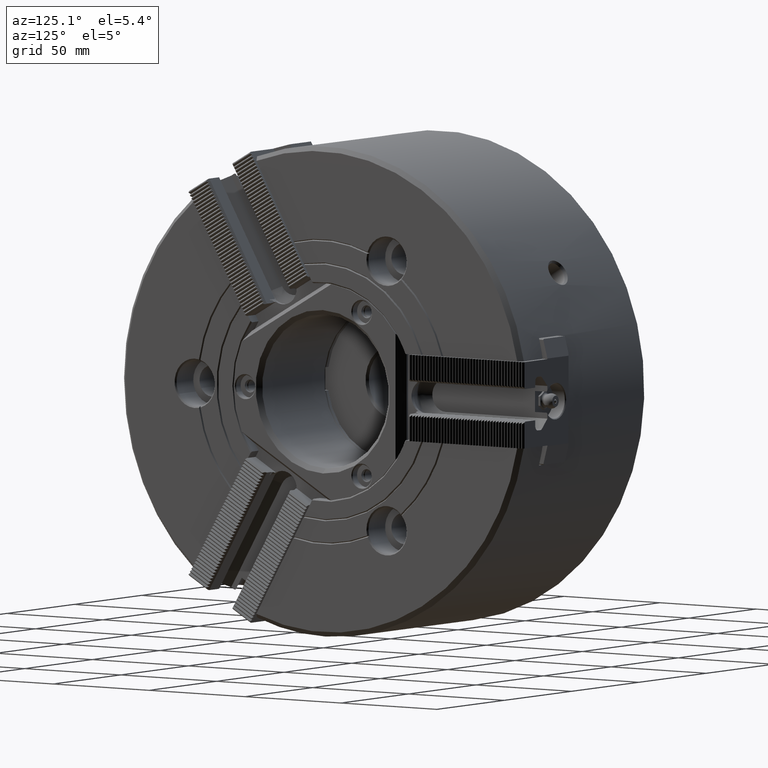
[diagram: clean part render]
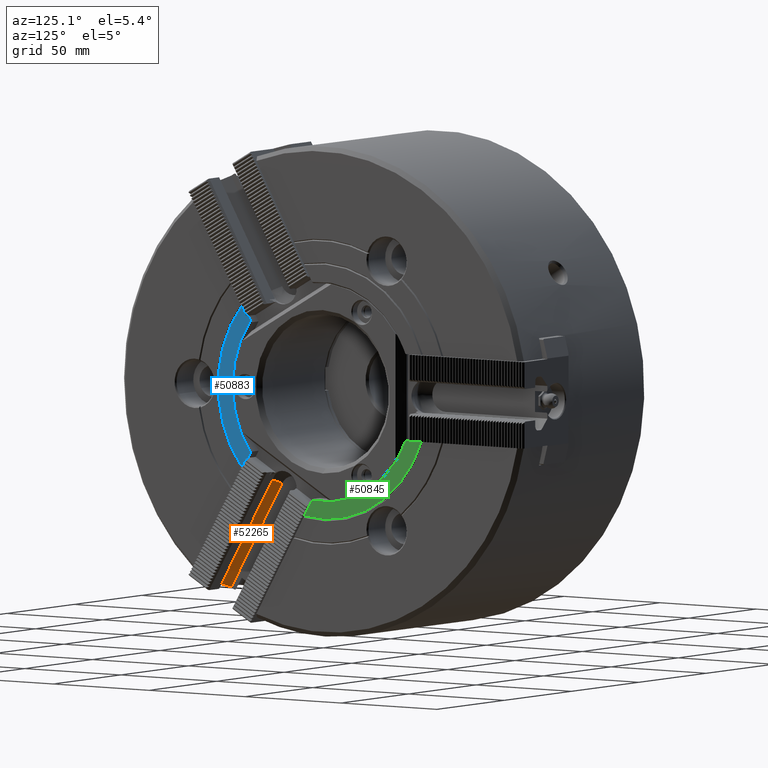
[diagram: same view with three faces highlighted in distinct colors, each labeled with its STEP entity id]
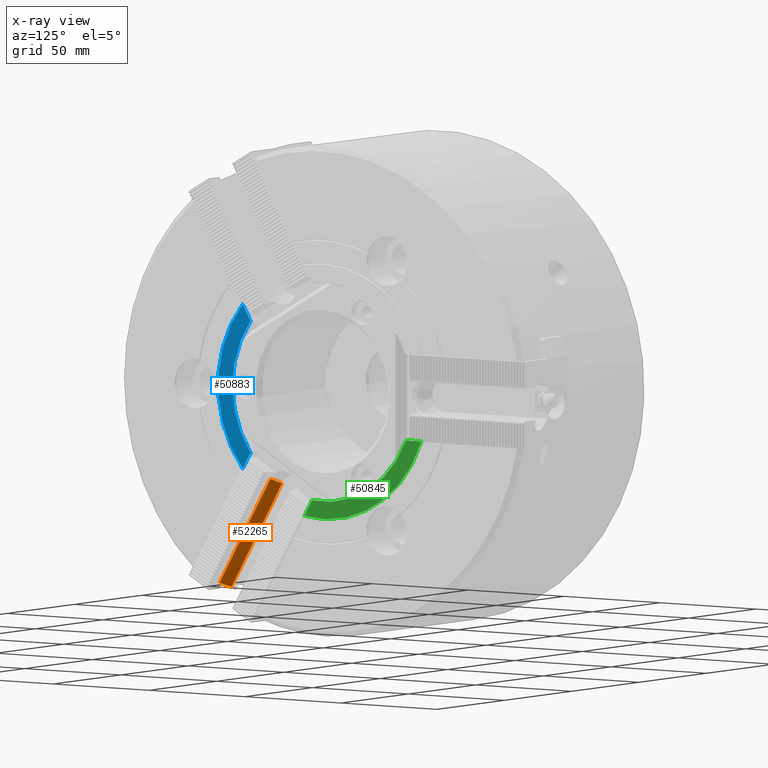
[diagram: x-ray of the same camera — body ghosted, the three highlighted faces saturated]
A machine part, auxiliary view with three faces highlighted in distinct colors.
The next image is the same camera in x-ray (body ghosted, the three faces saturated) — at least one of them is partly hidden behind the body in this view.
Their STEP definitions:

[orange] entity #52265 — the highlighted planar face has unit normal (-0.7071, -0.6124, 0.3536).
#1907=PLANE('',#55027);
#6609=LINE('',#77130,#10636);
#6619=LINE('',#77155,#10646);
#6622=LINE('',#77174,#10649);
#6623=LINE('',#77176,#10650);
#10636=VECTOR('',#63751,1000.);
#10646=VECTOR('',#63779,1000.);
#10649=VECTOR('',#63792,1000.);
#10650=VECTOR('',#63793,1000.);
#19846=ORIENTED_EDGE('',*,*,#27061,.T.);
#19847=ORIENTED_EDGE('',*,*,#27062,.F.);
#19848=ORIENTED_EDGE('',*,*,#27041,.F.);
#19849=ORIENTED_EDGE('',*,*,#27055,.T.);
#27041=EDGE_CURVE('',#30791,#31222,#6609,.T.);
#27055=EDGE_CURVE('',#30791,#31227,#6619,.T.);
#27061=EDGE_CURVE('',#31227,#31231,#6622,.T.);
#27062=EDGE_CURVE('',#31222,#31231,#6623,.T.);
#30791=VERTEX_POINT('',#75357);
#31222=VERTEX_POINT('',#77131);
#31227=VERTEX_POINT('',#77154);
#31231=VERTEX_POINT('',#77175);
#33637=EDGE_LOOP('',(#19846,#19847,#19848,#19849));
#35940=FACE_BOUND('',#33637,.T.);
#52265=ADVANCED_FACE('',(#35940),#1907,.F.);
#55027=AXIS2_PLACEMENT_3D('',#77173,#63790,#63791);
#63751=DIRECTION('',(-0.70710678118655,0.612372435695792,-0.353553390593273));
#63779=DIRECTION('',(-4.99014954236659E-16,-0.500000000000001,-0.866025403784438));
#63790=DIRECTION('',(-0.707106781186546,-0.612372435695796,0.353553390593276));
#63791=DIRECTION('',(-0.70710678118655,0.612372435695792,-0.353553390593273));
#63792=DIRECTION('',(-0.70710678118655,0.612372435695792,-0.353553390593273));
#63793=DIRECTION('',(-4.99014954236659E-16,-0.500000000000001,-0.866025403784438));
#75357=CARTESIAN_POINT('',(-12.0857864376269,-35.8585676859036,-40.2804339658889));
#77130=CARTESIAN_POINT('',(-16.0000000000001,-32.4687593050509,-42.2375407470755));
#77131=CARTESIAN_POINT('',(-16.0000000000001,-32.4687593050509,-42.2375407470755));
#77154=CARTESIAN_POINT('',(-12.0857864376269,-62.3585676859036,-86.1797803664641));
#77155=CARTESIAN_POINT('',(-12.0857864376269,-35.8585676859036,-40.2804339658889));
#77173=CARTESIAN_POINT('',(-16.0000000000001,-32.4687593050509,-42.2375407470755));
#77174=CARTESIAN_POINT('',(-16.0000000000001,-58.968759305051,-88.1368871476507));
#77175=CARTESIAN_POINT('',(-16.0000000000001,-58.968759305051,-88.1368871476507));
#77176=CARTESIAN_POINT('',(-16.0000000000001,-32.4687593050509,-42.2375407470755));

[blue] entity #50883 — the highlighted planar face has unit normal (1, 0, 0).
#850=PLANE('',#53143);
#2451=CIRCLE('',#53142,54.6);
#2452=CIRCLE('',#53144,47.1);
#3304=LINE('',#66551,#7331);
#3317=LINE('',#66599,#7344);
#3515=LINE('',#67507,#7542);
#3516=LINE('',#67508,#7543);
#7331=VECTOR('',#56212,1000.);
#7344=VECTOR('',#56253,1000.);
#7542=VECTOR('',#56917,1000.);
#7543=VECTOR('',#56918,1000.);
#11927=ORIENTED_EDGE('',*,*,#23086,.F.);
#11928=ORIENTED_EDGE('',*,*,#23085,.F.);
#11929=ORIENTED_EDGE('',*,*,#23087,.T.);
#11930=ORIENTED_EDGE('',*,*,#22697,.T.);
#11931=ORIENTED_EDGE('',*,*,#23088,.T.);
#11932=ORIENTED_EDGE('',*,*,#22675,.F.);
#22675=EDGE_CURVE('',#28285,#28286,#3304,.T.);
#22697=EDGE_CURVE('',#28307,#28306,#3317,.T.);
#23085=EDGE_CURVE('',#28656,#28655,#2451,.T.);
#23086=EDGE_CURVE('',#28655,#28285,#3515,.T.);
#23087=EDGE_CURVE('',#28656,#28307,#3516,.T.);
#23088=EDGE_CURVE('',#28306,#28286,#2452,.T.);
#28285=VERTEX_POINT('',#66550);
#28286=VERTEX_POINT('',#66552);
#28306=VERTEX_POINT('',#66598);
#28307=VERTEX_POINT('',#66600);
#28655=VERTEX_POINT('',#67502);
#28656=VERTEX_POINT('',#67504);
#32129=EDGE_LOOP('',(#11927,#11928,#11929,#11930,#11931,#11932));
#34409=FACE_BOUND('',#32129,.T.);
#50883=ADVANCED_FACE('',(#34409),#850,.T.);
#53142=AXIS2_PLACEMENT_3D('',#67505,#56913,#56914);
#53143=AXIS2_PLACEMENT_3D('',#67506,#56915,#56916);
#53144=AXIS2_PLACEMENT_3D('',#67509,#56919,#56920);
#56212=DIRECTION('',(0.,0.499999999999992,-0.866025403784443));
#56253=DIRECTION('',(0.,0.500000000000001,0.866025403784438));
#56913=DIRECTION('',(-1.,0.,0.));
#56914=DIRECTION('',(0.,-0.866025403784443,-0.499999999999992));
#56915=DIRECTION('',(1.,0.,0.));
#56916=DIRECTION('',(0.,-0.866025403784443,-0.499999999999992));
#56917=DIRECTION('',(0.,0.499999999999992,-0.866025403784443));
#56918=DIRECTION('',(0.,0.500000000000001,0.866025403784438));
#56919=DIRECTION('',(-1.,0.,0.));
#56920=DIRECTION('',(0.,-0.866025403784443,-0.499999999999992));
#66550=CARTESIAN_POINT('',(0.,-38.9280529133345,30.4253620749035));
#66551=CARTESIAN_POINT('',(0.,-68.5214699700114,81.6826673973667));
#66552=CARTESIAN_POINT('',(0.,-37.6788012922224,28.2615982064218));
#66598=CARTESIAN_POINT('',(0.,-37.6788012922228,-28.2615982064213));
#66599=CARTESIAN_POINT('',(0.,-68.5214699700125,-81.6826673973657));
#66600=CARTESIAN_POINT('',(0.,-38.9280514485719,-30.4253629205844));
#67502=CARTESIAN_POINT('',(-2.73684582074331E-7,-41.706632309527,35.238002761973));
#67504=CARTESIAN_POINT('',(-2.2465621091094E-9,-41.7066310660359,-35.2380039909074));
#67505=CARTESIAN_POINT('',(0.,0.,0.));
#67506=CARTESIAN_POINT('',(4.33680868994202E-16,-54.6,3.78169717762944E-13));
#67507=CARTESIAN_POINT('',(0.,-68.5214699700114,81.6826673973667));
#67508=CARTESIAN_POINT('',(0.,-68.5214699700125,-81.6826673973657));
#67509=CARTESIAN_POINT('',(8.67361737988404E-16,0.,0.));

[green] entity #50845 — the highlighted planar face has unit normal (1, 0, 0).
#835=PLANE('',#53023);
#2381=CIRCLE('',#53022,47.1);
#2382=CIRCLE('',#53024,54.6);
#3384=LINE('',#66824,#7411);
#3391=LINE('',#66845,#7418);
#3486=LINE('',#67214,#7513);
#3487=LINE('',#67216,#7514);
#7411=VECTOR('',#56384,1000.);
#7418=VECTOR('',#56401,1000.);
#7513=VECTOR('',#56648,1000.);
#7514=VECTOR('',#56649,1000.);
#11765=ORIENTED_EDGE('',*,*,#22966,.T.);
#11766=ORIENTED_EDGE('',*,*,#22805,.T.);
#11767=ORIENTED_EDGE('',*,*,#22965,.F.);
#11768=ORIENTED_EDGE('',*,*,#22795,.F.);
#11769=ORIENTED_EDGE('',*,*,#22967,.F.);
#11770=ORIENTED_EDGE('',*,*,#22968,.T.);
#22795=EDGE_CURVE('',#28403,#28404,#3384,.T.);
#22805=EDGE_CURVE('',#28413,#28412,#3391,.T.);
#22965=EDGE_CURVE('',#28404,#28412,#2381,.T.);
#22966=EDGE_CURVE('',#28564,#28413,#3486,.T.);
#22967=EDGE_CURVE('',#28565,#28403,#3487,.T.);
#22968=EDGE_CURVE('',#28565,#28564,#2382,.T.);
#28403=VERTEX_POINT('',#66823);
#28404=VERTEX_POINT('',#66825);
#28412=VERTEX_POINT('',#66844);
#28413=VERTEX_POINT('',#66846);
#28564=VERTEX_POINT('',#67215);
#28565=VERTEX_POINT('',#67217);
#32081=EDGE_LOOP('',(#11765,#11766,#11767,#11768,#11769,#11770));
#34360=FACE_BOUND('',#32081,.T.);
#50845=ADVANCED_FACE('',(#34360),#835,.T.);
#53022=AXIS2_PLACEMENT_3D('',#67212,#56644,#56645);
#53023=AXIS2_PLACEMENT_3D('',#67213,#56646,#56647);
#53024=AXIS2_PLACEMENT_3D('',#67218,#56650,#56651);
#56384=DIRECTION('',(0.,0.500000000000001,0.866025403784438));
#56401=DIRECTION('',(0.,-1.,0.));
#56644=DIRECTION('',(1.,0.,0.));
#56645=DIRECTION('',(0.,0.,-1.));
#56646=DIRECTION('',(1.,0.,0.));
#56647=DIRECTION('',(0.,0.,-1.));
#56648=DIRECTION('',(0.,-1.,0.));
#56649=DIRECTION('',(0.,0.500000000000001,0.866025403784438));
#56650=DIRECTION('',(1.,0.,0.));
#56651=DIRECTION('',(0.,0.,-1.));
#66823=CARTESIAN_POINT('',(0.,-6.88511150854771,-48.9253629205845));
#66824=CARTESIAN_POINT('',(0.,-36.4785300299883,-100.182667397366));
#66825=CARTESIAN_POINT('',(0.,-5.63586135219861,-46.7615982064214));
#66844=CARTESIAN_POINT('',(0.,43.314662644421,-18.5));
#66845=CARTESIAN_POINT('',(0.,105.,-18.5));
#66846=CARTESIAN_POINT('',(0.,45.8131629328733,-18.5000000000005));
#67212=CARTESIAN_POINT('',(8.67361737988404E-16,0.,0.));
#67213=CARTESIAN_POINT('',(4.33680868994202E-16,27.3,-47.2849870466304));
#67214=CARTESIAN_POINT('',(0.,105.,-18.5));
#67215=CARTESIAN_POINT('',(-1.01849044434764E-13,51.3703221714638,-18.5000000000005));
#67216=CARTESIAN_POINT('',(0.,-36.4785300299883,-100.182667397366));
#67217=CARTESIAN_POINT('',(-1.20046617795631E-15,-9.66369113036376,-53.7380039984454));
#67218=CARTESIAN_POINT('',(0.,0.,0.));